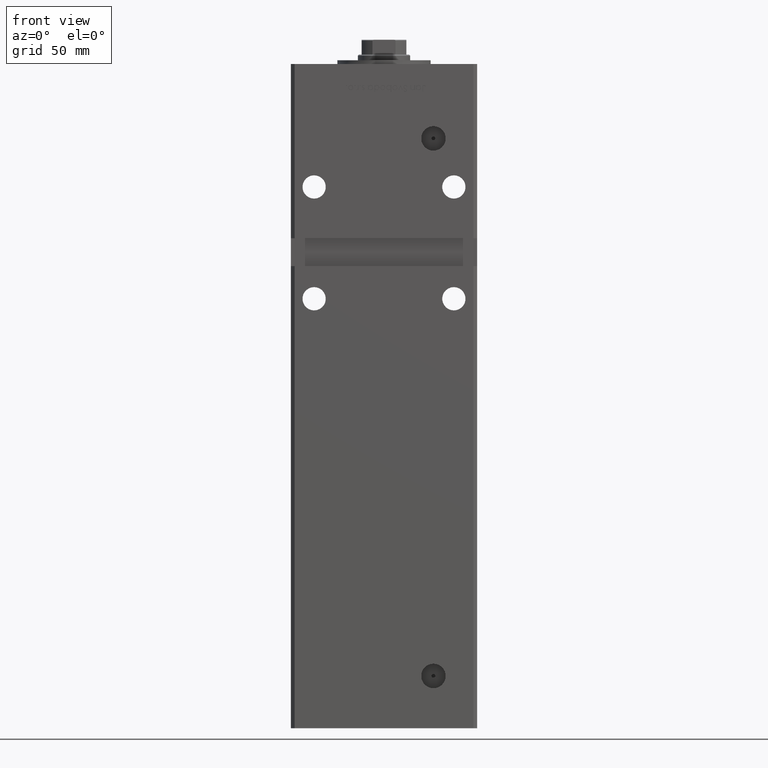
[diagram: clean part render]
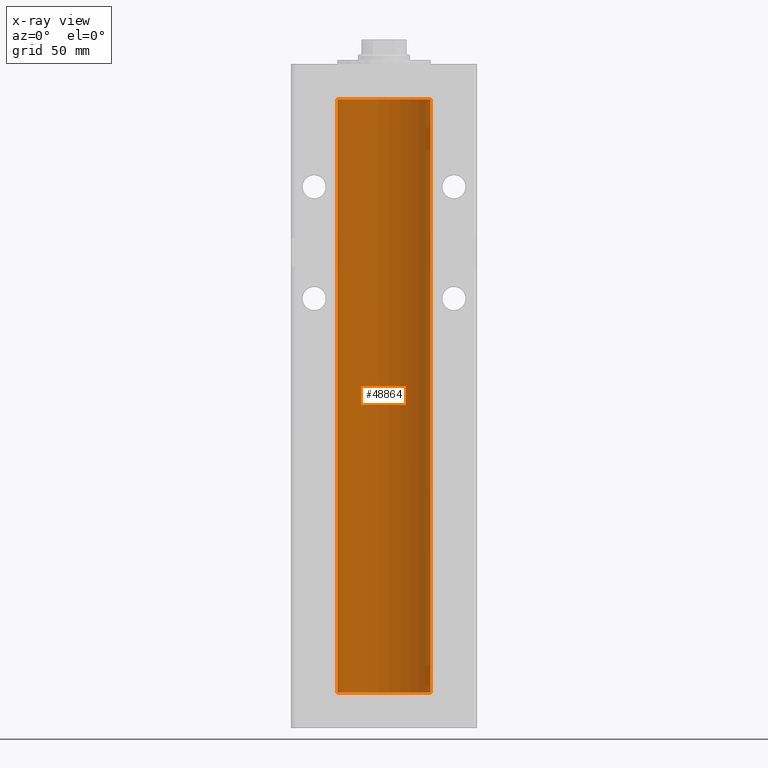
[diagram: x-ray — body ghosted, one internal face saturated and labeled with its STEP entity id]
A machine part, front view, then the same camera in x-ray: the body is ghosted and one INTERNAL B-rep face — a face not visible from any outside direction — is saturated and labeled: STEP entity #48864.
In plain terms, the highlighted cylindrical surface (partial cylindrical patch) has radius 25 mm, axis along (-0, -0, -1).
Its self-contained STEP definition (entity closure, byte-faithful):
#267 = CARTESIAN_POINT ( 'NONE',  ( 25.00000000000000000, 3.061616997868383043E-15, 318.5000000000000000 ) ) ;
#1721 = EDGE_LOOP ( 'NONE', ( #45912, #34875, #12272, #6800 ) ) ;
#2029 = CIRCLE ( 'NONE', #10624, 25.00000000000000000 ) ;
#4934 = FACE_OUTER_BOUND ( 'NONE', #1721, .T. ) ;
#5135 = AXIS2_PLACEMENT_3D ( 'NONE', #21860, #41213, #50064 ) ;
#6362 = CARTESIAN_POINT ( 'NONE',  ( 0.000000000000000000, 0.000000000000000000, 0.000000000000000000 ) ) ;
#6800 = ORIENTED_EDGE ( 'NONE', *, *, #9292, .F. ) ;
#8088 = LINE ( 'NONE', #267, #48019 ) ;
#9292 = EDGE_CURVE ( 'NONE', #46645, #40522, #2029, .T. ) ;
#9519 = DIRECTION ( 'NONE',  ( 1.000000000000000000, 0.000000000000000000, 0.000000000000000000 ) ) ;
#10624 = AXIS2_PLACEMENT_3D ( 'NONE', #6362, #22994, #15473 ) ;
#12272 = ORIENTED_EDGE ( 'NONE', *, *, #41055, .T. ) ;
#13543 = CARTESIAN_POINT ( 'NONE',  ( 0.000000000000000000, 0.000000000000000000, 318.5000000000000000 ) ) ;
#15473 = DIRECTION ( 'NONE',  ( 1.000000000000000000, 0.000000000000000000, 0.000000000000000000 ) ) ;
#16678 = DIRECTION ( 'NONE',  ( -0.000000000000000000, -0.000000000000000000, -1.000000000000000000 ) ) ;
#19636 = CARTESIAN_POINT ( 'NONE',  ( -25.00000000000000000, 0.000000000000000000, 0.000000000000000000 ) ) ;
#21860 = CARTESIAN_POINT ( 'NONE',  ( 0.000000000000000000, 0.000000000000000000, 318.5000000000000000 ) ) ;
#22475 = CARTESIAN_POINT ( 'NONE',  ( 25.00000000000000000, 3.061616997868383043E-15, 318.5000000000000000 ) ) ;
#22994 = DIRECTION ( 'NONE',  ( -0.000000000000000000, 0.000000000000000000, 1.000000000000000000 ) ) ;
#25360 = EDGE_CURVE ( 'NONE', #27101, #39236, #52146, .T. ) ;
#25776 = CARTESIAN_POINT ( 'NONE',  ( 25.00000000000000000, 3.061616997868383043E-15, 0.000000000000000000 ) ) ;
#27101 = VERTEX_POINT ( 'NONE', #22475 ) ;
#29104 = CYLINDRICAL_SURFACE ( 'NONE', #5135, 25.00000000000000000 ) ;
#29899 = VECTOR ( 'NONE', #49920, 1000.000000000000000 ) ;
#29903 = DIRECTION ( 'NONE',  ( -0.000000000000000000, 0.000000000000000000, 1.000000000000000000 ) ) ;
#30457 = CARTESIAN_POINT ( 'NONE',  ( -25.00000000000000000, 0.000000000000000000, 318.5000000000000000 ) ) ;
#32200 = LINE ( 'NONE', #45621, #29899 ) ;
#34875 = ORIENTED_EDGE ( 'NONE', *, *, #25360, .T. ) ;
#36538 = EDGE_CURVE ( 'NONE', #27101, #46645, #8088, .T. ) ;
#39236 = VERTEX_POINT ( 'NONE', #30457 ) ;
#40522 = VERTEX_POINT ( 'NONE', #19636 ) ;
#41055 = EDGE_CURVE ( 'NONE', #39236, #40522, #32200, .T. ) ;
#41213 = DIRECTION ( 'NONE',  ( -0.000000000000000000, -0.000000000000000000, -1.000000000000000000 ) ) ;
#44432 = AXIS2_PLACEMENT_3D ( 'NONE', #13543, #29903, #9519 ) ;
#45621 = CARTESIAN_POINT ( 'NONE',  ( -25.00000000000000000, 0.000000000000000000, 318.5000000000000000 ) ) ;
#45912 = ORIENTED_EDGE ( 'NONE', *, *, #36538, .F. ) ;
#46645 = VERTEX_POINT ( 'NONE', #25776 ) ;
#48019 = VECTOR ( 'NONE', #16678, 1000.000000000000000 ) ;
#48864 = ADVANCED_FACE ( 'NONE', ( #4934 ), #29104, .F. ) ;
#49920 = DIRECTION ( 'NONE',  ( -0.000000000000000000, -0.000000000000000000, -1.000000000000000000 ) ) ;
#50064 = DIRECTION ( 'NONE',  ( -1.000000000000000000, 0.000000000000000000, 0.000000000000000000 ) ) ;
#52146 = CIRCLE ( 'NONE', #44432, 25.00000000000000000 ) ;